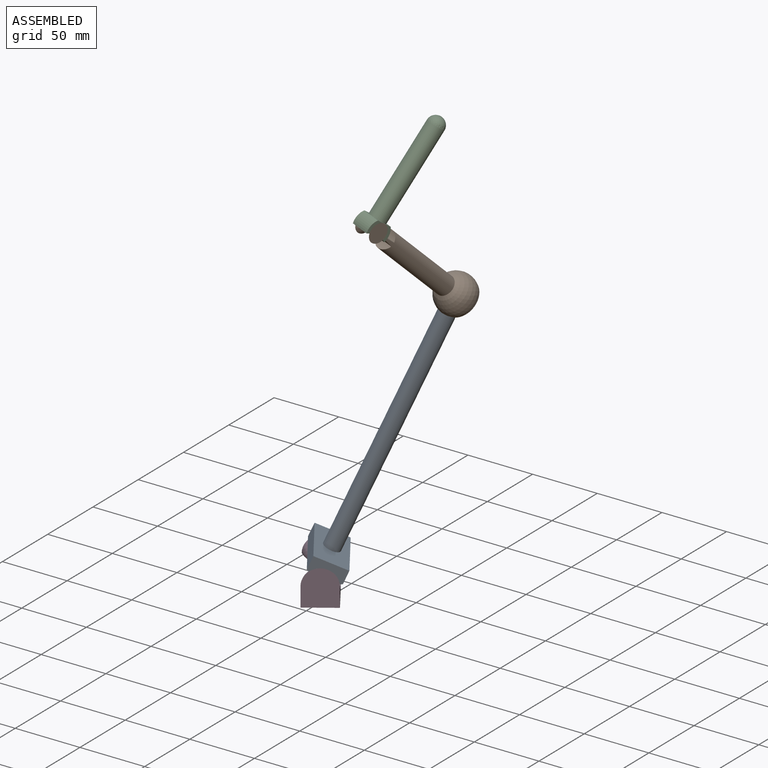
[diagram: assembled view]
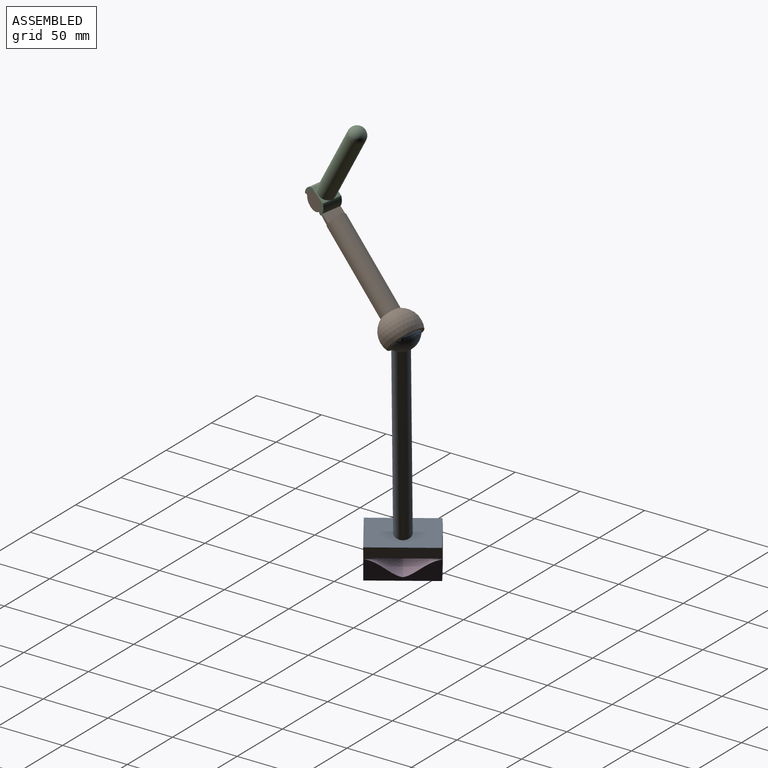
[diagram: assembled view, second angle]
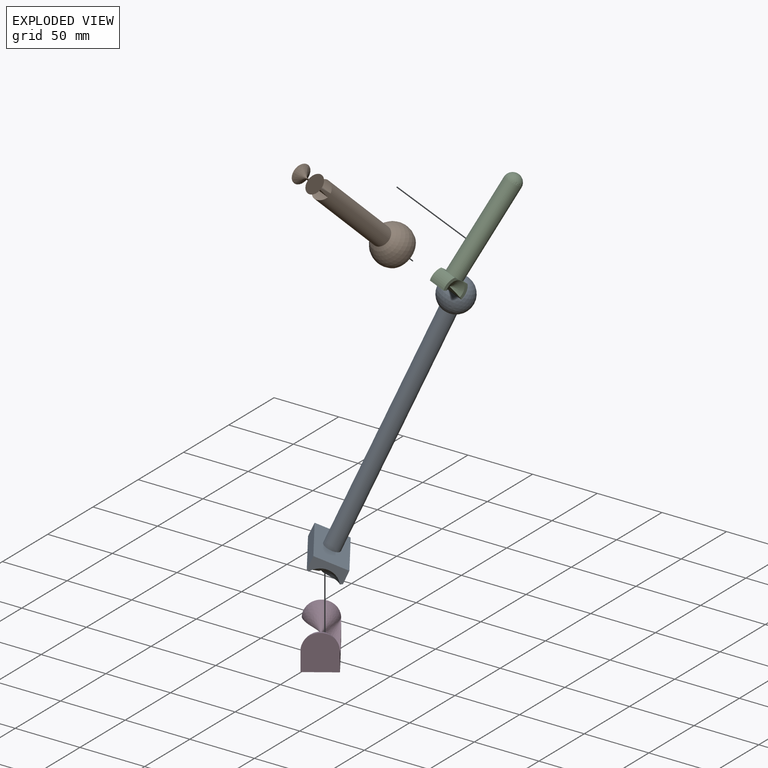
[diagram: exploded view]
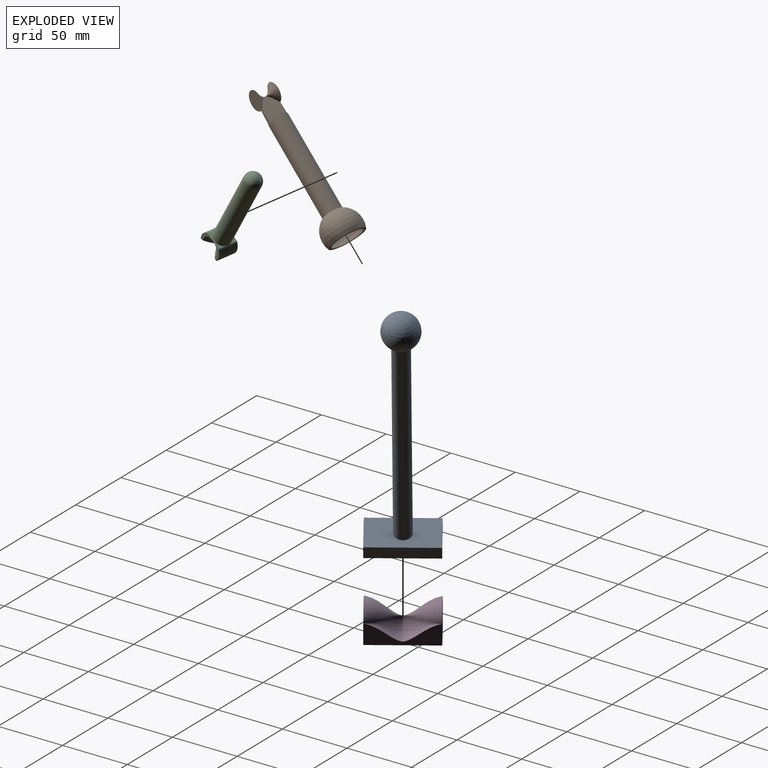
[diagram: exploded view, second angle]
ASSEMBLY  parts=4 mates=3
PART A: 11 faces, bbox 50x26.2x224.6 mm
  f0: plane 25x11.25mm, normal (-1,0,0), area 183.7mm2, adj f3,f4,f5,f6,f7,f8
  f1: plane 25x11.25mm, normal (1,0,0), area 183.7mm2, adj f2,f4,f5,f6,f7,f8
  f2: revolved ~25x21.65mm, area 381.1mm2, adj f1,f6,f7
  f3: revolved ~25x21.65mm, area 381.1mm2, adj f0,f6,f7
  f4: plane 50x10.28mm, normal (0,1,0), area 514.2mm2, adj f0,f1,f6,f8
  f5: plane 50x10.28mm, normal (0,-1,0), area 514.2mm2, adj f0,f1,f7,f8
  f6: plane 50x12.5mm, normal (0,0.5,-0.87), area 396.8mm2, adj f0,f1,f2,f3,f4
  f7: plane 50x12.5mm, normal (0,-0.5,-0.87), area 396.8mm2, adj f0,f1,f2,f3,f5
  f8: plane 50x25mm, normal (0,0,1), area 1127.3mm2, adj f0,f1,f4,f5,f9
  f9: cylinder r=6.25mm len=182.5mm, axis (0,0,1), area 7166.8mm2, adj f8,f10
  f10: sphere r=13.09mm, area 2022.1mm2, adj f9
PART B: 16 faces, bbox 30x30x113.4 mm
  f0: cylinder r=7.33mm len=79.74mm, axis (0,0,-1), area 3287.9mm2, adj f5,f6,f7,f8,f11,f12,f14,f15
  f1: plane 14.65x14.65mm, normal (1,0,0), area 168.7mm2, adj f7,f8,f9,f10,f13
  f2: plane 14.65x14.65mm, normal (-1,0,0), area 168.7mm2, adj f6
  f3: sphere r=13.09mm, area 1562.5mm2, adj f4
  f4: plane 27.57x27.57mm, normal (0,0,-1), area 168.7mm2, adj f3,f5
  f5: sphere r=15mm, area 1790.7mm2, adj f0,f4
  f6: revolved ~14.65x14.65mm, area 205.8mm2, adj f0,f2,f12,f15
  f7: revolved ~2.17x0.51mm, area 0.2mm2, adj f0,f1,f13
  f8: revolved ~2.17x0.51mm, area 0.2mm2, adj f0,f1,f10
  f9: revolved ~14.65x7.33mm, area 105.8mm2, adj f1,f10,f13
  f10: revolved ~7.33x7.33mm, area 49.8mm2, adj f1,f8,f9,f12
  f11: cylinder r=17.33mm len=14.34mm, axis (-1,0,0), area 64.4mm2, adj f0,f12
  f12: plane 17.31x14.7mm, normal (0,1,0.09), area 212mm2, adj f0,f6,f10,f11
  f13: revolved ~7.33x7.33mm, area 49.8mm2, adj f1,f7,f9,f15
  f14: cylinder r=17.33mm len=14.34mm, axis (-1,0,0), area 64.4mm2, adj f0,f15
  f15: plane 17.31x14.7mm, normal (0,-1,0.09), area 212mm2, adj f0,f6,f13,f14
PART C: 14 faces, bbox 14.7x19.7x87.2 mm
  f0: plane 13.1x7.33mm, normal (0,0,1), area 28.6mm2, adj f1,f2,f3,f8,f12
  f1: cylinder r=9.83mm len=14.65mm, axis (1,0,0), area 171.4mm2, adj f0,f2,f4,f10,f11
  f2: plane 10.69x9.83mm, normal (-1,0,0), area 29.9mm2, adj f0,f1,f7,f10
  f3: plane 10.69x9.83mm, normal (-1,0,0), area 29.9mm2, adj f0,f7,f8,f9
  f4: plane 10.69x9.83mm, normal (1,0,0), area 29.9mm2, adj f1,f6,f10,f11
  f5: plane 10.69x9.83mm, normal (1,0,0), area 29.9mm2, adj f6,f8,f9,f11
  f6: revolved ~14.65x9.83mm, area 129.3mm2, adj f4,f5,f9,f10
  f7: revolved ~14.65x9.83mm, area 129.3mm2, adj f2,f3,f9,f10
  f8: cylinder r=9.83mm len=14.65mm, axis (1,0,0), area 171.4mm2, adj f0,f3,f5,f9,f11
  f9: plane 14.65x9.23mm, normal (0,0.34,-0.94), area 103.7mm2, adj f3,f5,f6,f7,f8
  f10: plane 14.65x9.23mm, normal (0,-0.34,-0.94), area 103.7mm2, adj f1,f2,f4,f6,f7
  f11: plane 13.1x7.33mm, normal (0,0,1), area 28.6mm2, adj f1,f4,f5,f8,f12
  f12: cylinder r=6.55mm len=70mm, axis (0,0,-1), area 2880.3mm2, adj f0,f11,f13
  f13: sphere r=6.55mm, area 269.5mm2, adj f12
PART D: 9 faces, bbox 50x25x27.5 mm
  f0: plane 50x15mm, normal (0,1,0), area 449.9mm2, adj f2,f3,f4,f7,f8
  f1: plane 50x15mm, normal (0,-1,0), area 449.9mm2, adj f2,f3,f4
  f2: plane 27.5x25mm, normal (1,0,0), area 620.4mm2, adj f0,f1,f4,f5
  f3: plane 27.5x25mm, normal (-1,0,0), area 620.4mm2, adj f0,f1,f4,f6
  f4: plane 50x25mm, normal (0,0,-1), area 1250mm2, adj f0,f1,f2,f3
  f5: revolved ~25x25mm, area 571.6mm2, adj f2,f8
  f6: revolved ~25x25mm, area 571.6mm2, adj f3,f7
  f7: revolved ~25x12.5mm, area 268.1mm2, adj f0,f6,f8
  f8: revolved ~25x12.5mm, area 268mm2, adj f0,f5,f7
PLACE A rot(axis=(-0.36,0.19,-0.91),60.4deg) t=(53,40.43,9.65)mm
PLACE B rot(axis=(-0.01,-0.4,0.92),160.5deg) t=(157.09,238.52,57.75)mm
PLACE C rot(axis=(-0.87,0.3,-0.4),39.9deg) t=(23.28,-147.05,21.15)mm
PLACE D rot(axis=(0,0,-1),55.9deg) t=(53,40.43,9.65)mm fixed
MATE revolute A.f2 <-> D.f6  axis (-0.56,0.83,0) through (46.66,49.8,9.65)mm
MATE revolute C.f1 <-> B.f11  axis (0.94,-0.32,-0.11) through (111.69,16.26,271.38)mm
MATE ball B.f0 <-> A.f9  axis (-0.16,-0.71,0.69) through (123.93,88.44,203.03)mm
